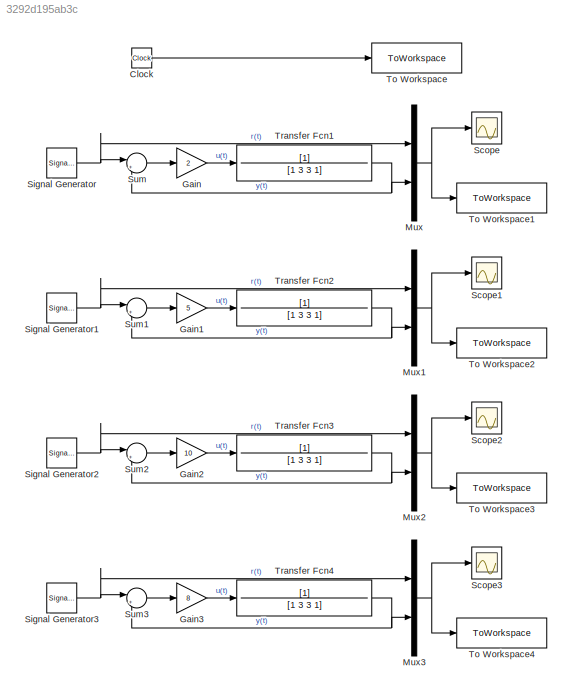
MODEL slx_3292d195ab3c
KIND model
CONFIG AbsTol = auto
CONFIG EnableMultiTasking = off
CONFIG FixedStep = auto
CONFIG MaxStep = auto
CONFIG MinStep = auto
CONFIG RelTol = 1e-3
CONFIG SampleTimeConstraint = Unconstrained
CONFIG SolverName = VariableStepAuto
CONFIG StartTime = 0.0
CONFIG StopTime = 150
BLOCK [Clock] Clock
  Decimation = 100
BLOCK [Gain] Gain
  Gain = 2
BLOCK [Gain] Gain1
  Gain = 5
BLOCK [Gain] Gain2
  Gain = 10
BLOCK [Gain] Gain3
  Gain = 8
BLOCK [Mux] Mux
  DisplayOption = bar
  Inputs = 2
BLOCK [Mux] Mux1
  DisplayOption = bar
  Inputs = 2
BLOCK [Mux] Mux2
  DisplayOption = bar
  Inputs = 2
BLOCK [Mux] Mux3
  DisplayOption = bar
  Inputs = 2
BLOCK [Scope] Scope
  Floating = off
  NumInputPorts = 1
  ScopeSpecificationString = Simulink.scopes.TimeScopeBlockCfg('CurrentConfiguration', extmgr.ConfigurationSet(extmgr.Configuration('Core','General UI',true),extmgr.Configuration('Core','Source UI',true),extmgr.Configuration('Sources','WiredSimulink',true),extmgr.Configuration('Visuals','Time Domain',true,'SerializedDisplays',{struct('MinYLimReal','-1.25','MaxYLimReal','1.25','YLabelReal','','MinYLimMag','0.00000','MaxYLimMag...<+1780ch>
BLOCK [Scope] Scope1
  Floating = off
  NumInputPorts = 1
  ScopeSpecificationString = Simulink.scopes.TimeScopeBlockCfg('CurrentConfiguration', extmgr.ConfigurationSet(extmgr.Configuration('Core','General UI',true),extmgr.Configuration('Core','Source UI',true),extmgr.Configuration('Sources','WiredSimulink',true,'DataLoggingVariableName','ScopeData1'),extmgr.Configuration('Visuals','Time Domain',true,'SerializedDisplays',{struct('MinYLimReal','-1.25','MaxYLimReal','1.25','YLabelReal...<+1819ch>
BLOCK [Scope] Scope2
  Floating = off
  NumInputPorts = 1
  ScopeSpecificationString = Simulink.scopes.TimeScopeBlockCfg('CurrentConfiguration', extmgr.ConfigurationSet(extmgr.Configuration('Core','General UI',true),extmgr.Configuration('Core','Source UI',true),extmgr.Configuration('Sources','WiredSimulink',true,'DataLoggingVariableName','ScopeData2'),extmgr.Configuration('Visuals','Time Domain',true,'SerializedDisplays',{struct('MinYLimReal','-1.25','MaxYLimReal','1.25','YLabelReal...<+1819ch>
BLOCK [Scope] Scope3
  Floating = off
  NumInputPorts = 1
  ScopeSpecificationString = Simulink.scopes.TimeScopeBlockCfg('CurrentConfiguration', extmgr.ConfigurationSet(extmgr.Configuration('Core','General UI',true),extmgr.Configuration('Core','Source UI',true),extmgr.Configuration('Sources','WiredSimulink',true,'DataLoggingVariableName','ScopeData3'),extmgr.Configuration('Visuals','Time Domain',true,'SerializedDisplays',{struct('MinYLimReal','-1.25','MaxYLimReal','1.25','YLabelReal...<+1819ch>
BLOCK [SignalGenerator] Signal Generator
  Frequency = 0.01
  WaveForm = square
BLOCK [SignalGenerator] Signal Generator1
  Frequency = 0.01
  WaveForm = square
BLOCK [SignalGenerator] Signal Generator2
  Frequency = 0.01
  WaveForm = square
BLOCK [SignalGenerator] Signal Generator3
  Frequency = 0.01
  WaveForm = square
BLOCK [Sum] Sum
  Inputs = |+-
BLOCK [Sum] Sum1
  Inputs = |+-
BLOCK [Sum] Sum2
  Inputs = |+-
BLOCK [Sum] Sum3
  Inputs = |+-
BLOCK [ToWorkspace] To Workspace
  FixptAsFi = on
  MaxDataPoints = inf
  SampleTime = -1
  VariableName = time
BLOCK [ToWorkspace] To Workspace1
  FixptAsFi = on
  MaxDataPoints = inf
  SampleTime = -1
  VariableName = TOstepK2
BLOCK [ToWorkspace] To Workspace2
  FixptAsFi = on
  MaxDataPoints = inf
  SampleTime = -1
  VariableName = TOstepK5
BLOCK [ToWorkspace] To Workspace3
  FixptAsFi = on
  MaxDataPoints = inf
  SampleTime = -1
  VariableName = TOstepK10
BLOCK [ToWorkspace] To Workspace4
  FixptAsFi = on
  MaxDataPoints = inf
  SampleTime = -1
  VariableName = TOstep8
BLOCK [TransferFcn] Transfer Fcn1
  Denominator = [1 3 3 1]
BLOCK [TransferFcn] Transfer Fcn2
  Denominator = [1 3 3 1]
BLOCK [TransferFcn] Transfer Fcn3
  Denominator = [1 3 3 1]
BLOCK [TransferFcn] Transfer Fcn4
  Denominator = [1 3 3 1]
LINE Clock:1 -> To Workspace:1
LINE Gain1:1 -> Transfer Fcn2:1
LINE Gain2:1 -> Transfer Fcn3:1
LINE Gain3:1 -> Transfer Fcn4:1
LINE Gain:1 -> Transfer Fcn1:1
NET Mux1:1 -> Scope1:1, To Workspace2:1
NET Mux2:1 -> Scope2:1, To Workspace3:1
NET Mux3:1 -> Scope3:1, To Workspace4:1
NET Mux:1 -> Scope:1, To Workspace1:1
NET Signal Generator1:1 -> Mux1:1, Sum1:1
NET Signal Generator2:1 -> Mux2:1, Sum2:1
NET Signal Generator3:1 -> Mux3:1, Sum3:1
NET Signal Generator:1 -> Mux:1, Sum:1
LINE Sum1:1 -> Gain1:1
LINE Sum2:1 -> Gain2:1
LINE Sum3:1 -> Gain3:1
LINE Sum:1 -> Gain:1
NET Transfer Fcn1:1 -> Mux:2, Sum:2
NET Transfer Fcn2:1 -> Mux1:2, Sum1:2
NET Transfer Fcn3:1 -> Mux2:2, Sum2:2
NET Transfer Fcn4:1 -> Mux3:2, Sum3:2
note: NET lines group one-source signal fan-out (src -> all destinations, sorted); 1:1 wires keep LINE
